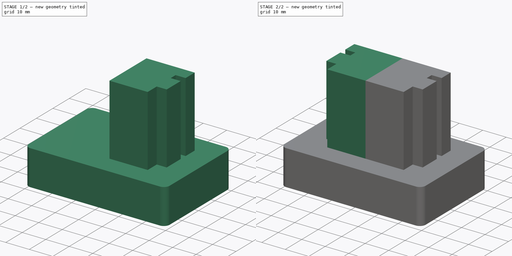
[diagram: build sequence overview — one tinted view per stage of 2, left to right]
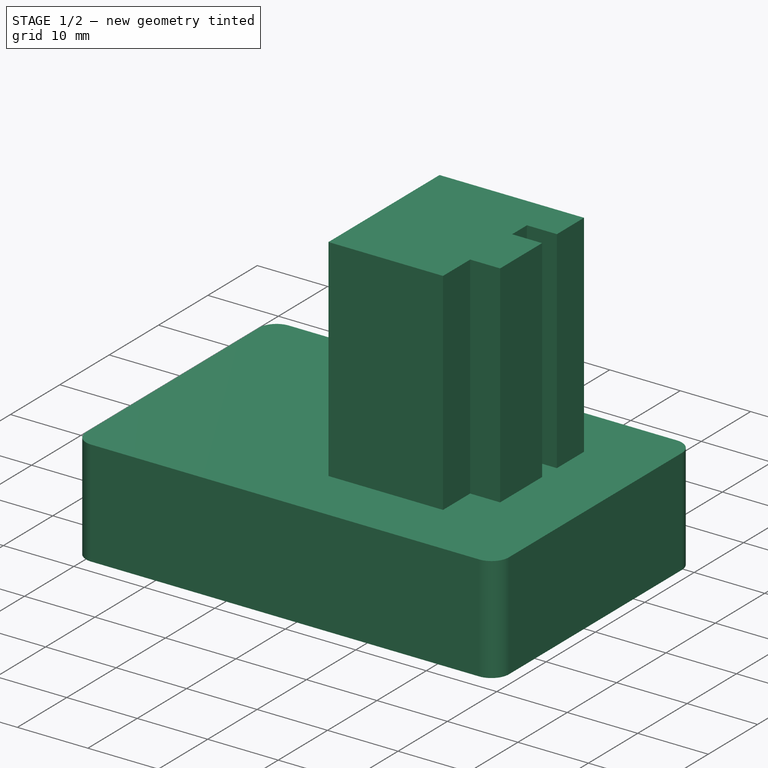
[diagram: stage 1 of 2 — iso view after this stage's code; geometry added in this stage tinted green]
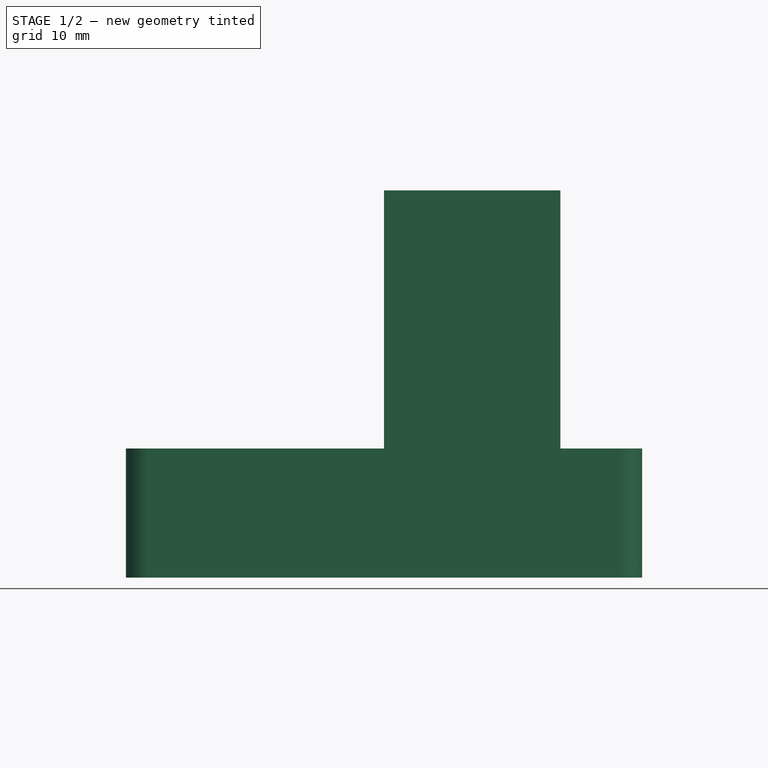
[diagram: stage 1 of 2 — front view after this stage's code; geometry added in this stage tinted green]
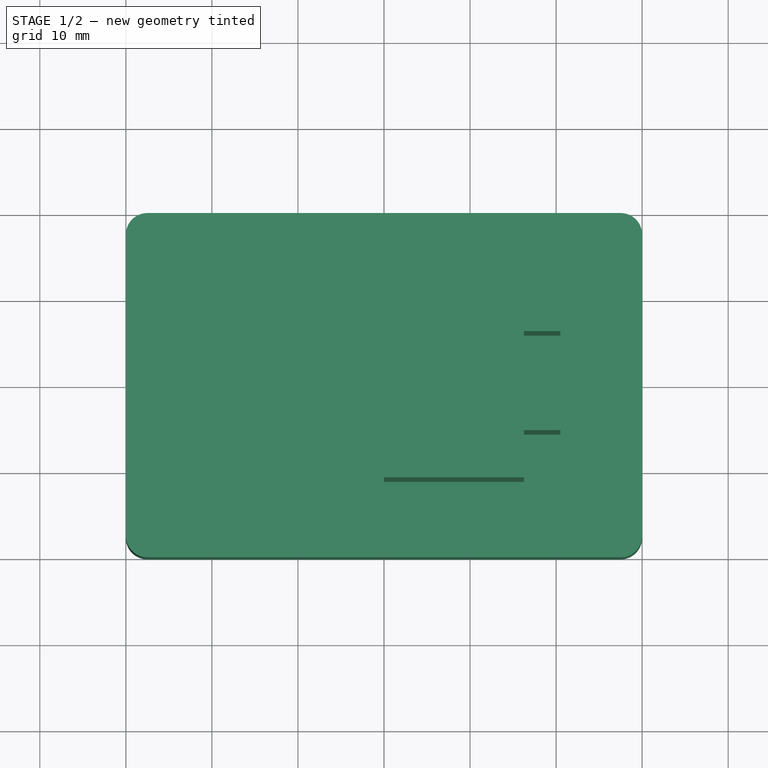
[diagram: stage 1 of 2 — top view after this stage's code; geometry added in this stage tinted green]
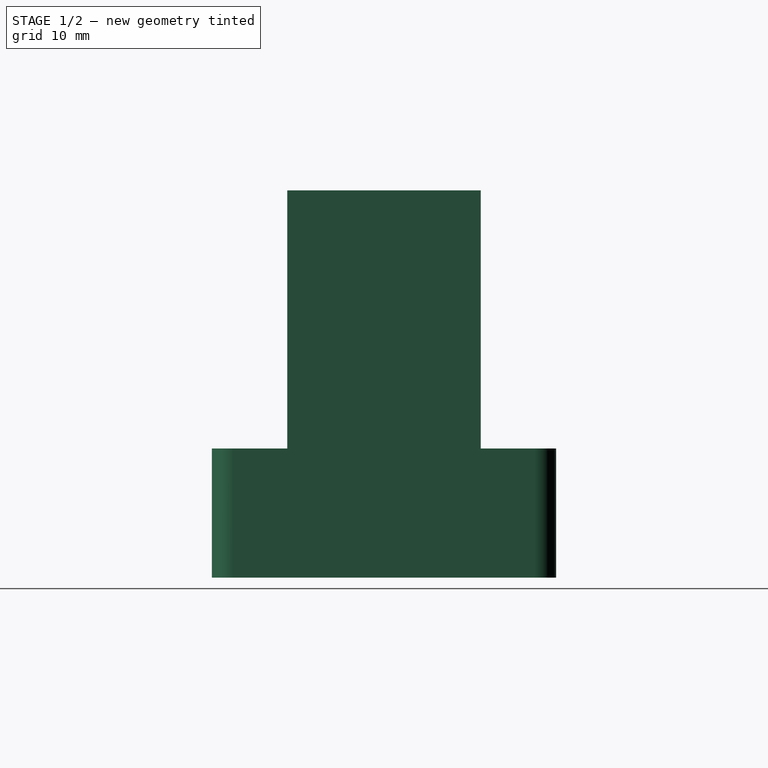
[diagram: stage 1 of 2 — right view after this stage's code; geometry added in this stage tinted green]
FCSTD DOCUMENT  (FreeCAD 0.20R29177 (Git))
Label: Упор палки
License: All rights reserved
LicenseURL: http://en.wikipedia.org/wiki/All_rights_reserved
objects: Sketcher::SketchObject×2, PartDesign::Pad×2, PartDesign::Mirrored×1, PartDesign::SubtractiveEllipsoid×1, PartDesign::Body×1
note: 10 computed .brp shape members not serialized (recipe doc carries the construction recipe); baked Part::Feature solids carry a one-line shape summary decoded from their .brp

FEATURE [Sketcher::SketchObject] Sketch
  FullyConstrained = true
  MapMode = 5
  Support = -> [XY_Plane]
  sketch-geometry (13):
    g0: LineSegment StartX=-30 StartY=-17.5 StartZ=0 EndX=-30 EndY=17.5 EndZ=0
    g1: LineSegment StartX=-27.5 StartY=20 StartZ=0 EndX=27.5 EndY=20 EndZ=0
    g2: LineSegment StartX=30 StartY=17.5 StartZ=0 EndX=30 EndY=-17.5 EndZ=0
    g3: LineSegment StartX=27.5 StartY=-20 StartZ=0 EndX=-27.5 EndY=-20 EndZ=0
    g4: GeomPoint X=0 Y=0 Z=0
    g5: ArcOfCircle CenterX=27.5 CenterY=17.5 CenterZ=0 NormalX=0 NormalY=0 NormalZ=1 AngleXU=0 Radius=2.5 StartAngle=-9e-16 EndAngle=1.5708
    g6: GeomPoint X=30 Y=20 Z=0
    g7: ArcOfCircle CenterX=27.5 CenterY=-17.5 CenterZ=0 NormalX=0 NormalY=0 NormalZ=1 AngleXU=0 Radius=2.5 StartAngle=4.71239 EndAngle=6.28319
    g8: GeomPoint X=30 Y=-20 Z=0
    g9: ArcOfCircle CenterX=-27.5 CenterY=-17.5 CenterZ=0 NormalX=0 NormalY=0 NormalZ=1 AngleXU=0 Radius=2.5 StartAngle=3.14159 EndAngle=4.71239
    g10: GeomPoint X=-30 Y=-20 Z=0
    g11: ArcOfCircle CenterX=-27.5 CenterY=17.5 CenterZ=0 NormalX=0 NormalY=0 NormalZ=1 AngleXU=0 Radius=2.5 StartAngle=1.5708 EndAngle=3.14159
    g12: GeomPoint X=-30 Y=20 Z=0
  constraints (28):
    c: Horizontal(g1)
    c: Horizontal(g3)
    c: Vertical(g0)
    c: Vertical(g2)
    c: Symmetric(g6,g10,g4)
    c: Coincident(g4,g-1)
    c: PointOnObject(g6,g1)
    c: PointOnObject(g6,g2)
    c: Tangent(g1,g5) = 1.5708
    c: Tangent(g2,g5) = 1.5708
    c: PointOnObject(g8,g2)
    c: PointOnObject(g8,g3)
    c: Tangent(g2,g7) = 1.5708
    c: Tangent(g3,g7) = 1.5708
    c: PointOnObject(g10,g3)
    c: PointOnObject(g10,g0)
    c: Tangent(g3,g9) = 1.5708
    c: Tangent(g0,g9) = 1.5708
    c: PointOnObject(g12,g0)
    c: PointOnObject(g12,g1)
    c: Tangent(g0,g11) = 1.5708
    c: Tangent(g1,g11) = 1.5708
    c: Equal(g9,g11)
    c: Equal(g11,g5)
    c: Equal(g5,g7)
    c: Diameter(g5) = 5
    c: Distance(g4,g2) = 30
    c: Distance(g4,g1) = 20
FEATURE [Sketcher::SketchObject] Sketch001
  FullyConstrained = true
  MapMode = 5
  Support = -> [XY_Plane]
  sketch-geometry (11):
    g0: LineSegment StartX=0 StartY=-11.25 StartZ=0 EndX=16.25 EndY=-11.25 EndZ=0
    g1: LineSegment StartX=16.25 StartY=-11.25 StartZ=0 EndX=16.25 EndY=-5.75 EndZ=0
    g2: LineSegment StartX=16.25 StartY=-5.75 StartZ=0 EndX=20.5 EndY=-5.75 EndZ=0
    g3: LineSegment StartX=20.5 StartY=-5.75 StartZ=0 EndX=20.5 EndY=2.75 EndZ=0
    g4: LineSegment StartX=20.5 StartY=2.75 StartZ=0 EndX=16.25 EndY=2.75 EndZ=0
    g5: LineSegment StartX=16.25 StartY=2.75 StartZ=0 EndX=16.25 EndY=5.75 EndZ=0
    g6: LineSegment StartX=16.25 StartY=5.75 StartZ=0 EndX=20.5 EndY=5.75 EndZ=0
    g7: LineSegment StartX=20.5 StartY=5.75 StartZ=0 EndX=20.5 EndY=11.25 EndZ=0
    g8: LineSegment StartX=20.5 StartY=11.25 StartZ=0 EndX=0 EndY=11.25 EndZ=0
    g9: LineSegment StartX=0 StartY=11.25 StartZ=0 EndX=0 EndY=0 EndZ=0
    g10: LineSegment StartX=0 StartY=0 StartZ=0 EndX=0 EndY=-11.25 EndZ=0
  constraints (30):
    c: PointOnObject(g9,g-2)
    c: PointOnObject(g10,g-2)
    c: Coincident(g10,g0)
    c: Horizontal(g0)
    c: Coincident(g0,g1)
    c: Vertical(g1)
    c: Coincident(g1,g2)
    c: Horizontal(g2)
    c: Coincident(g2,g3)
    c: Vertical(g3)
    c: Coincident(g3,g4)
    c: Horizontal(g4)
    c: Coincident(g4,g5)
    c: Coincident(g5,g6)
    c: Horizontal(g6)
    c: Coincident(g6,g7)
    c: Coincident(g7,g8)
    c: Coincident(g8,g9)
    c: Horizontal(g8)
    c: Distance(g1) = 5.5
    c: Distance(g5) = 3
    c: Distance(g0) = 16.25
    c: Distance(g8) = 20.5
    c: Tangent(g7,g3)
    c: Tangent(g1,g5)
    c: DistanceY(g0,g4) = 14
    c: Coincident(g9,g10)
    c: Distance(g9,g10) = 22.5
    c: Equal(g10,g9)
    c: Coincident(g9,g-1)
FEATURE [PartDesign::Pad] Pad
  Direction = (0,0,1)
  Length = 15
  Length2 = 10
  Profile = -> Sketch
  ReferenceAxis = -> Sketch [N_Axis]
  Type = 0
FEATURE [PartDesign::Pad] Pad001
  BaseFeature = -> Pad
  Direction = (0,0,1)
  Length = 45
  Length2 = 10
  Profile = -> Sketch001
  ReferenceAxis = -> Sketch001 [N_Axis]
  Type = 0
  expr: Length = Pad.Length + 30mm
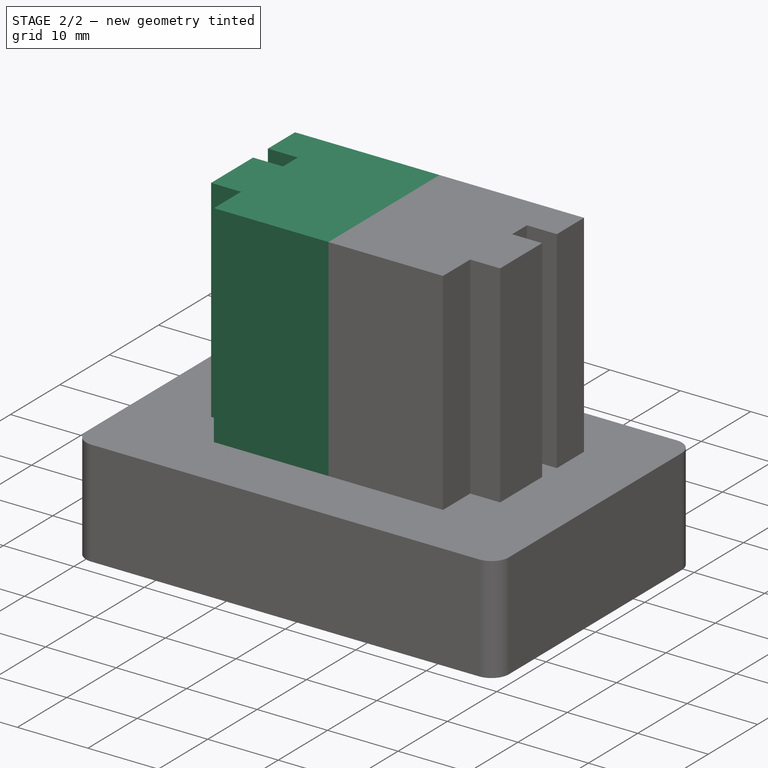
[diagram: stage 2 of 2 — iso view after this stage's code; geometry added in this stage tinted green]
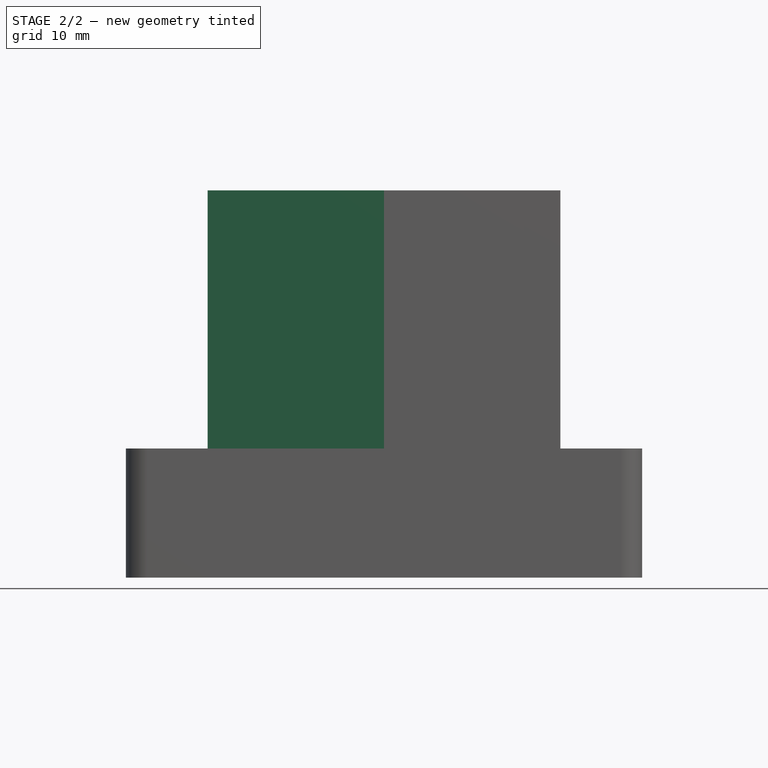
[diagram: stage 2 of 2 — front view after this stage's code; geometry added in this stage tinted green]
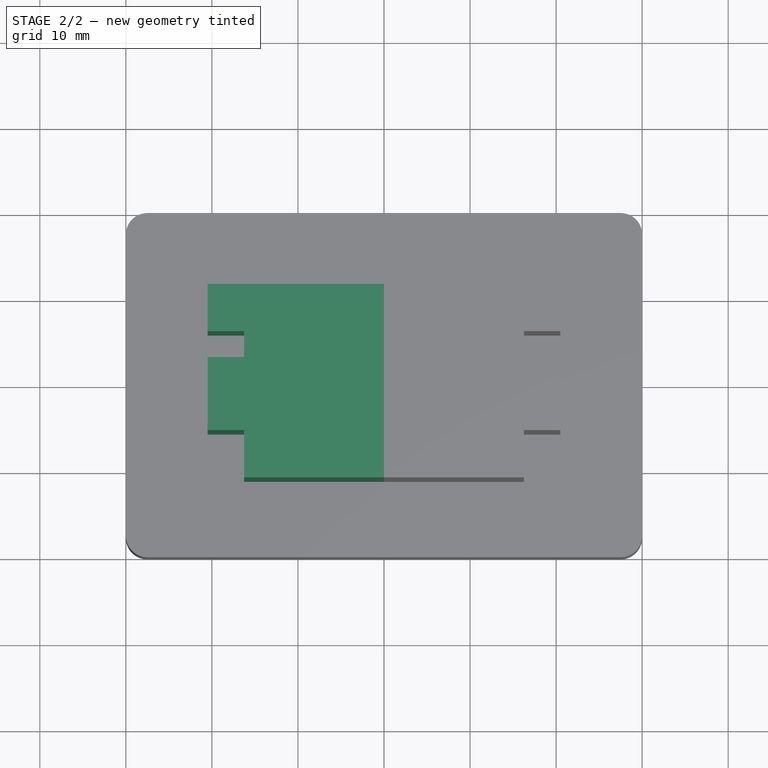
[diagram: stage 2 of 2 — top view after this stage's code; geometry added in this stage tinted green]
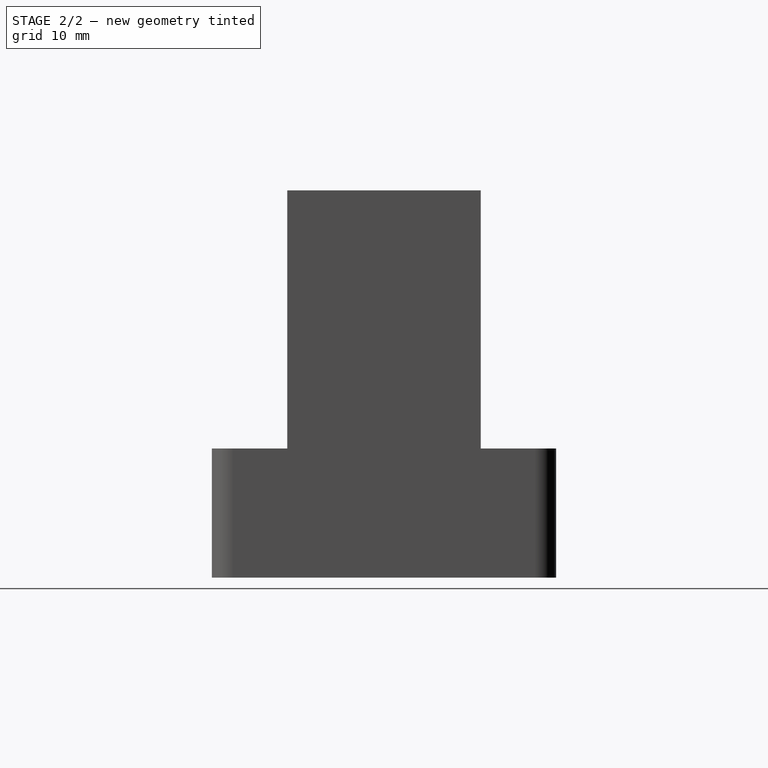
[diagram: stage 2 of 2 — right view after this stage's code; geometry added in this stage tinted green]
FEATURE [PartDesign::Mirrored] Mirrored
  BaseFeature = -> Pad001
  MirrorPlane = -> Sketch001 [V_Axis]
  Originals = -> [Pad001]
FEATURE [PartDesign::SubtractiveEllipsoid] Ellipsoid
  Angle1 = -90
  Angle2 = 90
  Angle3 = 360
  AttacherType = Attacher::AttachEngine3D
  AttachmentOffset = pos=(0,0,-3) rot=(0,0,1;0rad)
  BaseFeature = -> Mirrored
  MapMode = 2
  Placement = pos=(0,0,-3) rot=(0,0,1;0rad)
  Radius1 = 13
  Radius2 = 29
  Radius3 = 19
  Support = -> [XY_Plane]
FEATURE [PartDesign::Body] Body
  Group = -> [Sketch,Sketch001,Pad,Pad001,Mirrored,Ellipsoid]
  Origin = -> Origin
  Tip = -> Ellipsoid
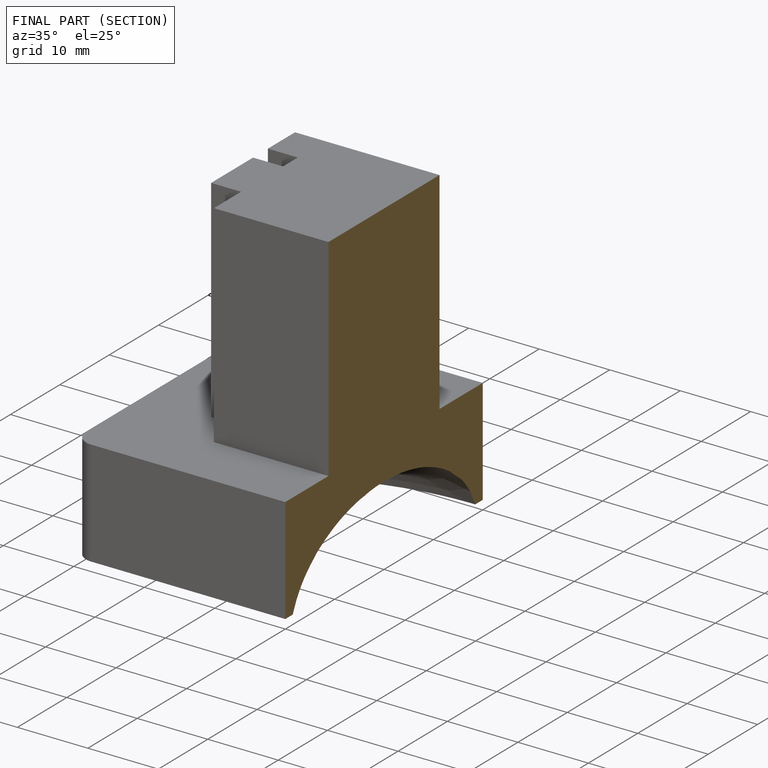
[diagram: finished part — half-section view (interior)]
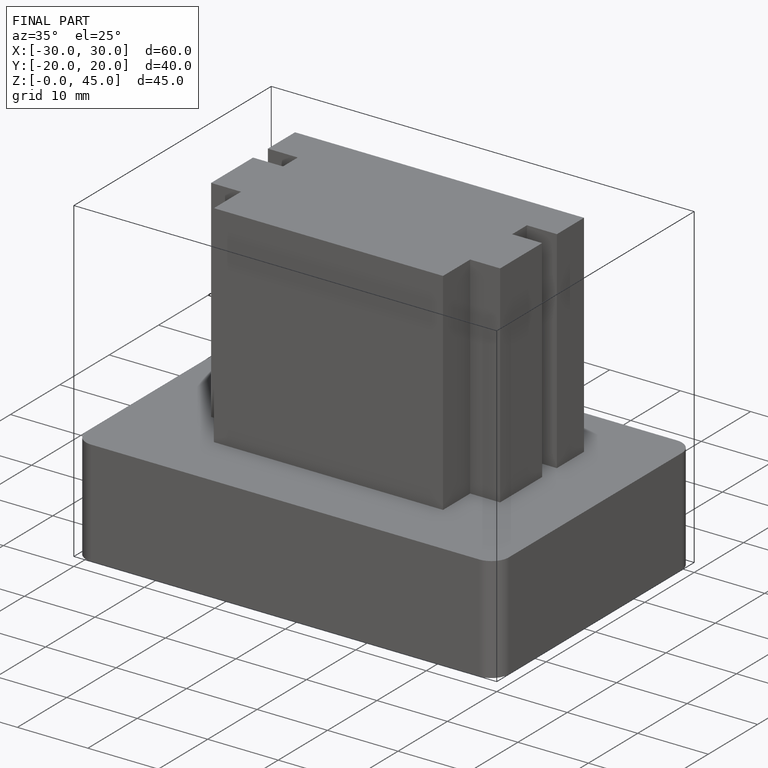
[diagram: finished part — iso view with bounding-box wireframe]
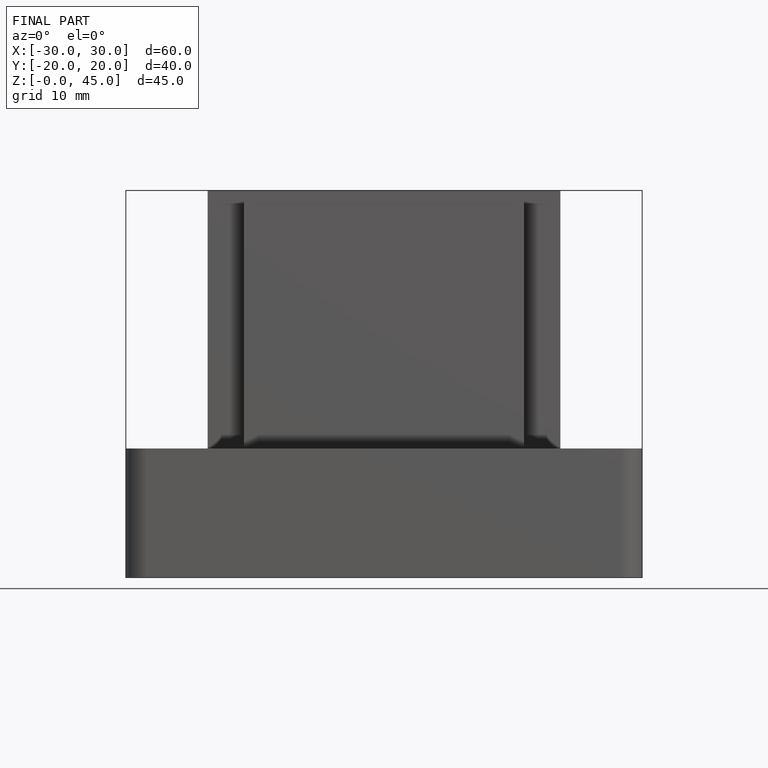
[diagram: finished part — front view with bounding-box wireframe]
